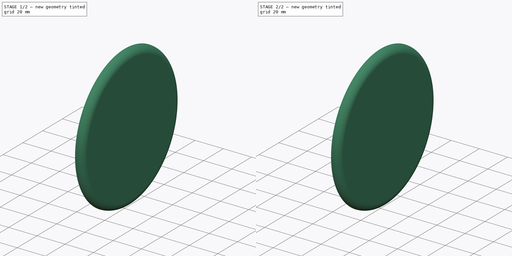
[diagram: build sequence overview — one tinted view per stage of 2, left to right]
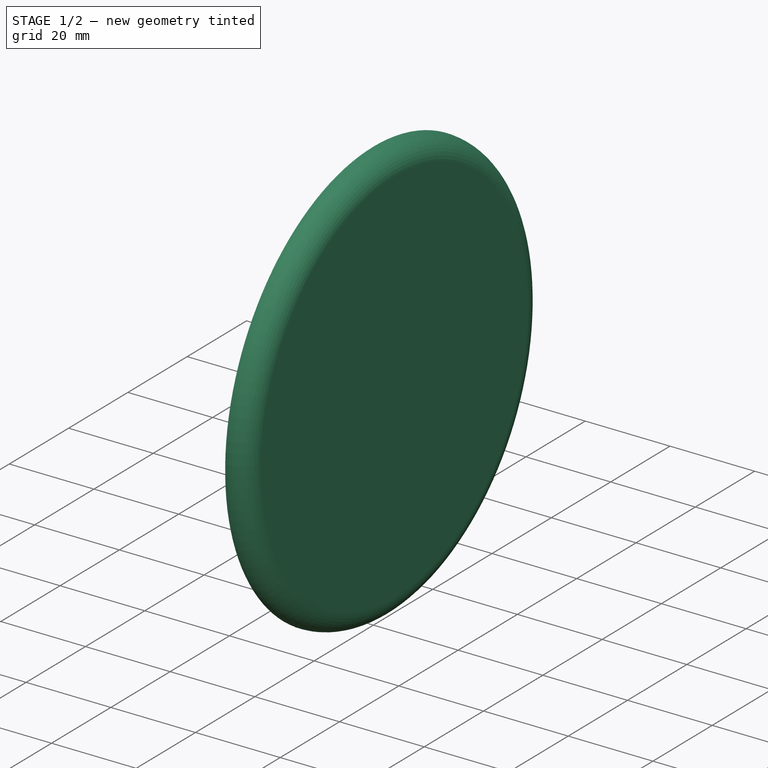
[diagram: stage 1 of 2 — iso view after this stage's code; geometry added in this stage tinted green]
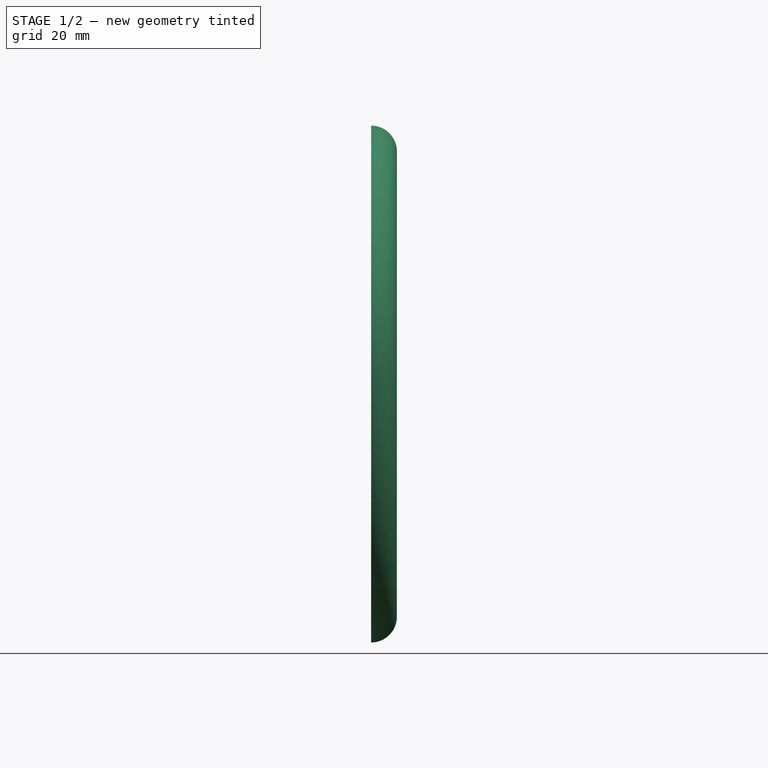
[diagram: stage 1 of 2 — front view after this stage's code; geometry added in this stage tinted green]
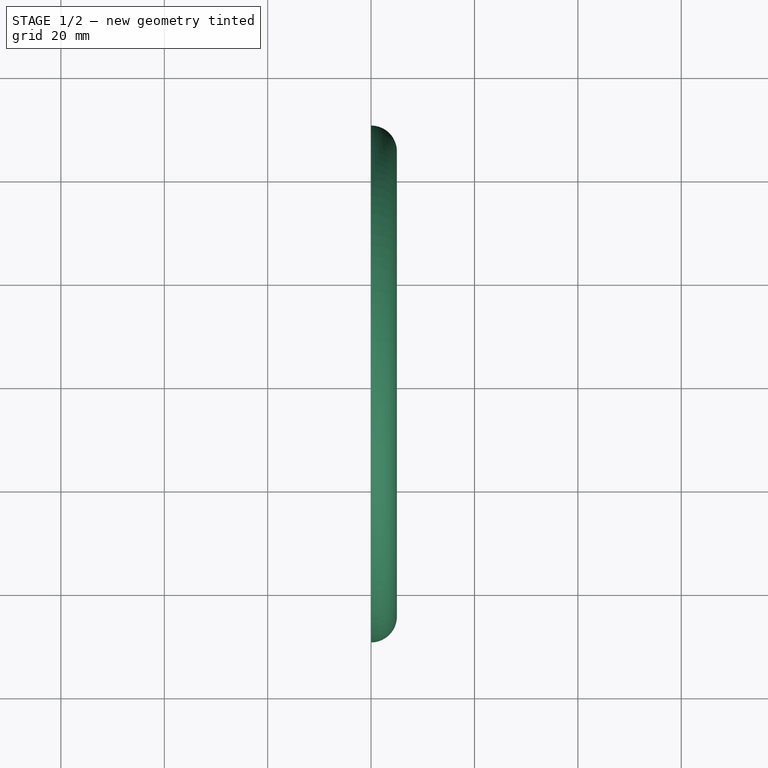
[diagram: stage 1 of 2 — top view after this stage's code; geometry added in this stage tinted green]
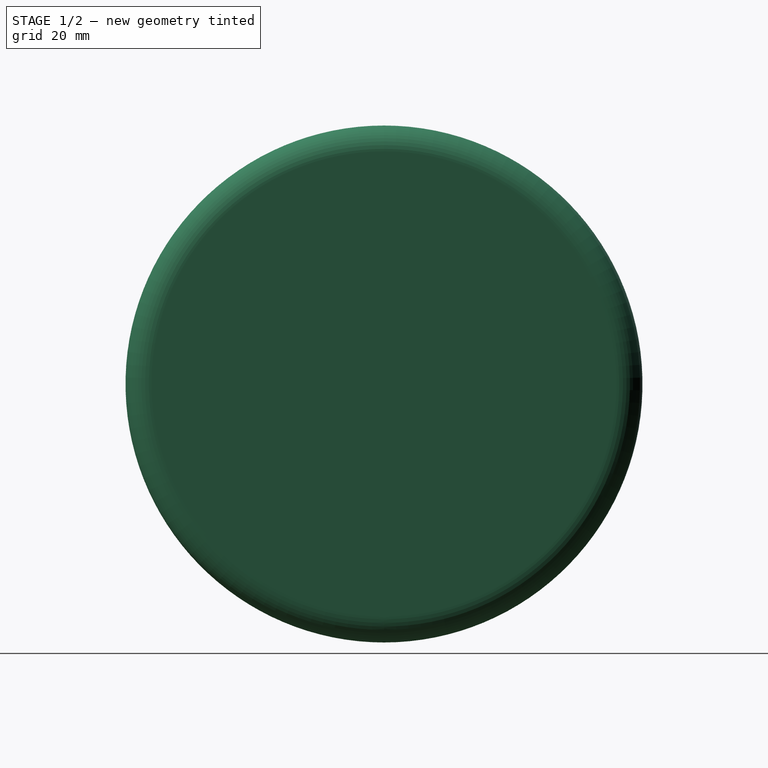
[diagram: stage 1 of 2 — right view after this stage's code; geometry added in this stage tinted green]
FCSTD DOCUMENT  (FreeCAD 0.20R27422 (Git))
Label: FlangedFlatPlate
License: All rights reserved
LicenseURL: http://en.wikipedia.org/wiki/All_rights_reserved
objects: Sketcher::SketchObject×3, PartDesign::Revolution×3, PartDesign::Body×3, Spreadsheet::Sheet×1, Part::Cut×1
note: 13 computed .brp shape members not serialized (recipe doc carries the construction recipe); baked Part::Feature solids carry a one-line shape summary decoded from their .brp

FEATURE [PartDesign::Body] Body  label="Outer"
  Group = -> [Sketch,Revolution]
  Origin = -> Origin
  Tip = -> Revolution
FEATURE [Sketcher::SketchObject] Sketch001  label="InnerShellSketch"
  AttachmentOffset = pos=(0,0,0) rot=(0,0,1;3.14159rad)
  FullyConstrained = true
  MapMode = 5
  Placement = pos=(0,0,0) rot=(0,-0.707107,0.707107;3.14159rad)
  Support = -> [XZ_Plane001]
  expr: .Constraints.EndcapHeight = Spreadsheet.flange_radius - Spreadsheet.thickness
  expr: .Constraints.EndcapLength = Spreadsheet.radius - Spreadsheet.flange_radius
  sketch-geometry (5):
    g0: LineSegment StartX=0 StartY=0 StartZ=0 EndX=1e-16 EndY=45 EndZ=0
    g1: LineSegment StartX=1e-16 StartY=45 StartZ=0 EndX=1e-16 EndY=47 EndZ=0
    g2: LineSegment StartX=0 StartY=0 StartZ=0 EndX=-2 EndY=0 EndZ=0
    g3: LineSegment StartX=-2 StartY=0 StartZ=0 EndX=-2 EndY=45 EndZ=0
    g4: ArcOfCircle CenterX=1e-16 CenterY=45 CenterZ=0 NormalX=0 NormalY=0 NormalZ=1 AngleXU=0 Radius=2 StartAngle=1.5708 EndAngle=3.14159
  constraints (14):
    c: Coincident(g0,g-1)
    c: PointOnObject(g0,g-2)
    c: Vertical(g1)
    c: Horizontal(g2)
    c: Vertical(g3)
    c: DistanceY(g0,g0) = 45  'EndcapLength'
    c: DistanceX(g2,g2) = 2  'EndcapHeight'
    c: Coincident(g2,g0)
    c: Coincident(g3,g2)
    c: Coincident(g1,g0)
    c: Coincident(g4,g0)
    c: Coincident(g4,g1)
    c: Coincident(g4,g3)
    c: Equal(g3,g0)
FEATURE [PartDesign::Revolution] Revolution001
  Angle = 360
  Axis = (-1,0,1e-16)
  Base = (0,0,0)
  Placement = pos=(0,0,0) rot=(1,0,0;1.5708rad)
  Profile = -> Sketch001
  ReferenceAxis = -> Sketch001 [H_Axis]
FEATURE [Sketcher::SketchObject] Sketch002
  AttachmentOffset = pos=(0,0,0) rot=(0,0,1;3.14159rad)
  FullyConstrained = true
  MapMode = 5
  Placement = pos=(0,0,0) rot=(0,-0.707107,0.707107;3.14159rad)
  Support = -> [XZ_Plane002]
  expr: .Constraints.EndcapHeight = Spreadsheet.flange_radius
  expr: .Constraints.EndcapLength = Spreadsheet.radius - Spreadsheet.flange_radius
  expr: .Constraints.FlangeRadius = Spreadsheet.flange_radius
  sketch-geometry (5):
    g0: LineSegment StartX=0 StartY=0 StartZ=0 EndX=2.7e-15 EndY=45 EndZ=0
    g1: LineSegment StartX=2.7e-15 StartY=45 StartZ=0 EndX=2.7e-15 EndY=50 EndZ=0
    g2: LineSegment StartX=0 StartY=0 StartZ=0 EndX=-5 EndY=0 EndZ=0
    g3: LineSegment StartX=-5 StartY=0 StartZ=0 EndX=-5 EndY=45 EndZ=0
    g4: ArcOfCircle CenterX=2.7e-15 CenterY=45 CenterZ=0 NormalX=0 NormalY=0 NormalZ=1 AngleXU=0 Radius=5 StartAngle=1.5708 EndAngle=3.1416
  constraints (14):
    c: Coincident(g0,g-1)
    c: PointOnObject(g0,g-2)
    c: Horizontal(g2)
    c: Vertical(g3)
    c: Radius(g4) = 5  'FlangeRadius'
    c: Coincident(g4,g0)
    c: Coincident(g1,g0)
    c: Vertical(g1)
    c: Coincident(g3,g2)
    c: Coincident(g2,g0)
    c: DistanceY(g0,g0) = 45  'EndcapLength'
    c: Coincident(g4,g1)
    c: DistanceX(g2,g2) = 5  'EndcapHeight'
    c: Coincident(g4,g3)
FEATURE [PartDesign::Revolution] Revolution002
  Angle = 360
  Axis = (-1,0,1e-16)
  Base = (0,0,0)
  Placement = pos=(0,0,0) rot=(1,0,0;1.5708rad)
  Profile = -> Sketch002
  ReferenceAxis = -> Sketch002 [H_Axis]
FEATURE [PartDesign::Body] Body002  label="DisplacedModel"
  Group = -> [Sketch002,Revolution002]
  Origin = -> Origin002
  Tip = -> Revolution002
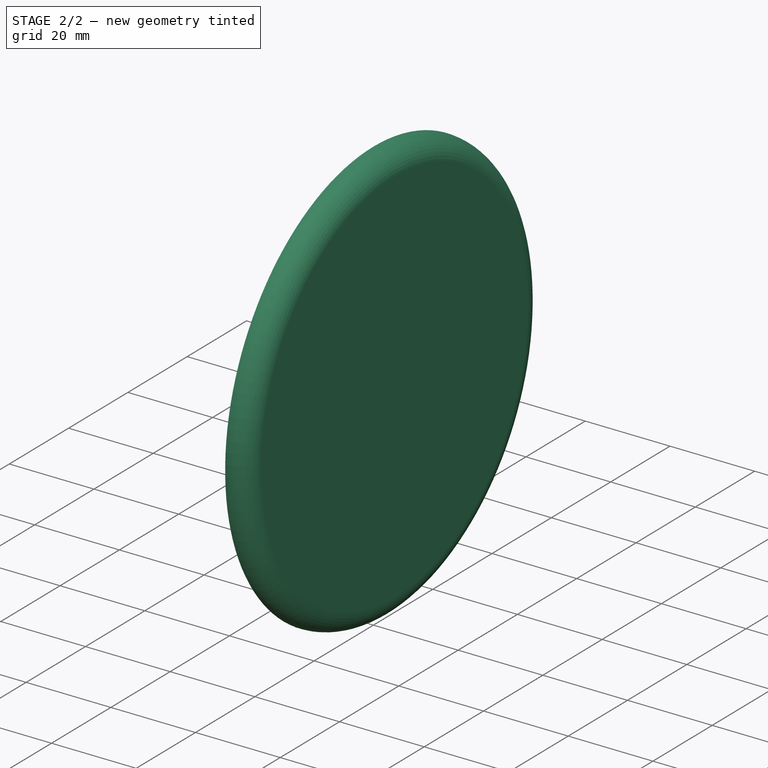
[diagram: stage 2 of 2 — iso view after this stage's code; geometry added in this stage tinted green]
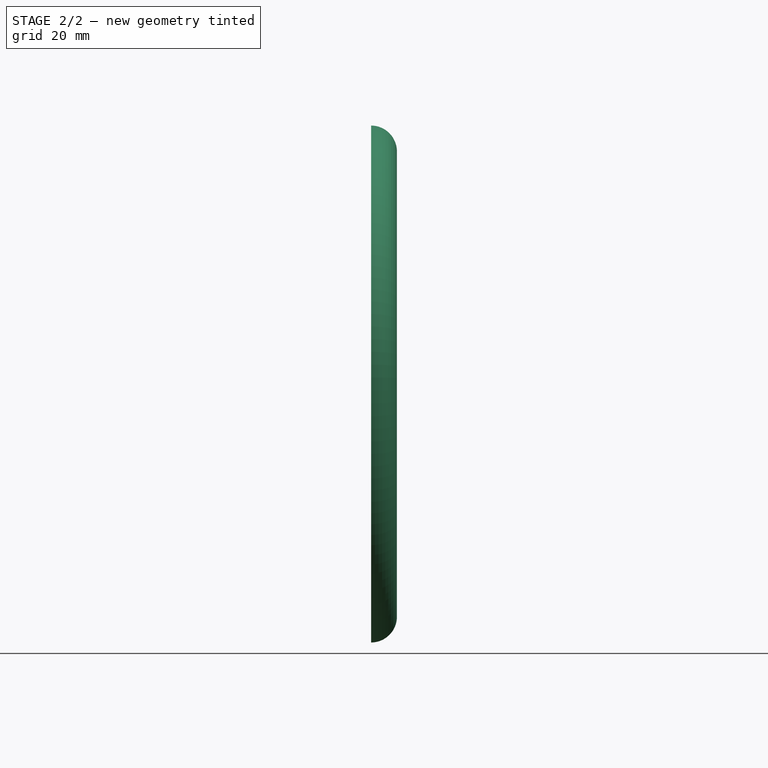
[diagram: stage 2 of 2 — front view after this stage's code; geometry added in this stage tinted green]
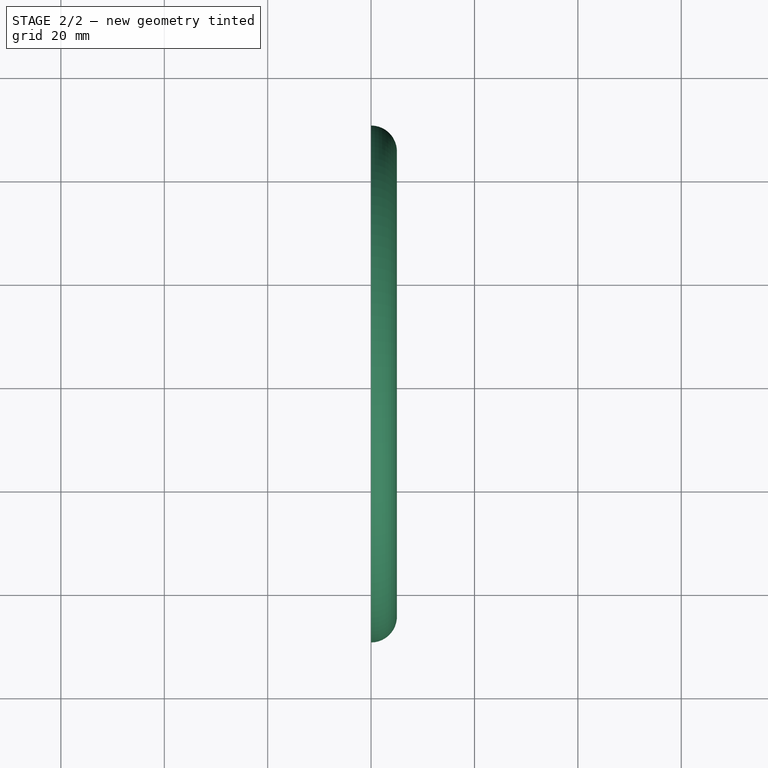
[diagram: stage 2 of 2 — top view after this stage's code; geometry added in this stage tinted green]
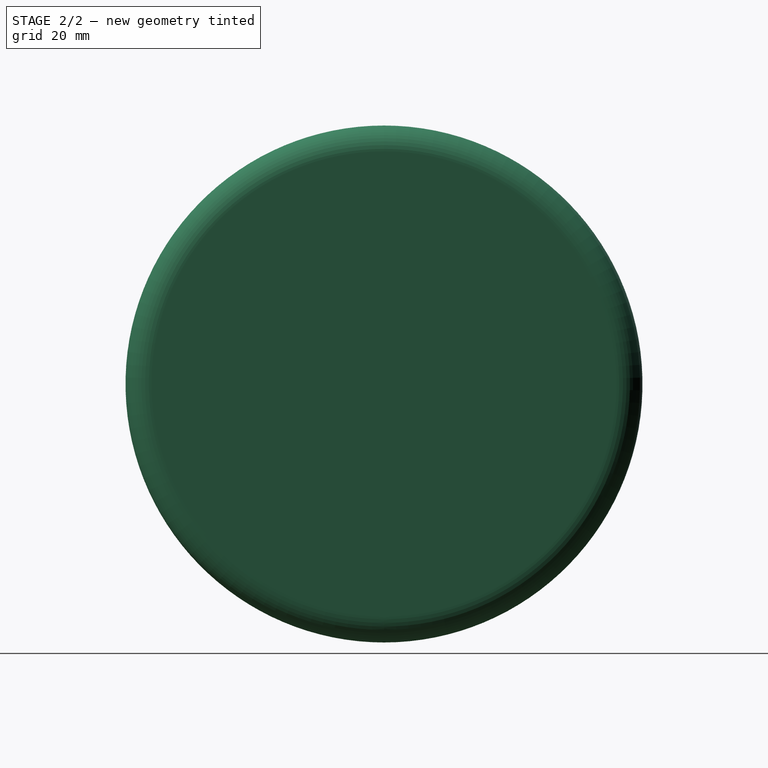
[diagram: stage 2 of 2 — right view after this stage's code; geometry added in this stage tinted green]
FEATURE [Spreadsheet::Sheet] Spreadsheet  label="Parameters"
  cells = A1=Radius; B1(radius)==0.05m; A2=Flange Radius; B2(flange_radius)==0.005m; A3=Thickness; B3(thickness)==0.003m
FEATURE [Sketcher::SketchObject] Sketch  label="OuterShellSketch"
  AttachmentOffset = pos=(0,0,0) rot=(0,0,1;3.14159rad)
  FullyConstrained = true
  MapMode = 5
  Placement = pos=(0,0,0) rot=(0,-0.707107,0.707107;3.14159rad)
  Support = -> [XZ_Plane]
  expr: .Constraints.EndcapHeight = Spreadsheet.flange_radius
  expr: .Constraints.EndcapLength = Spreadsheet.radius - Spreadsheet.flange_radius
  expr: .Constraints.FlangeRadius = Spreadsheet.flange_radius
  sketch-geometry (5):
    g0: LineSegment StartX=0 StartY=0 StartZ=0 EndX=2.1e-15 EndY=45 EndZ=0
    g1: LineSegment StartX=2.1e-15 StartY=45 StartZ=0 EndX=2.1e-15 EndY=50 EndZ=0
    g2: LineSegment StartX=0 StartY=0 StartZ=0 EndX=-5 EndY=0 EndZ=0
    g3: LineSegment StartX=-5 StartY=0 StartZ=0 EndX=-5 EndY=45 EndZ=0
    g4: ArcOfCircle CenterX=2.1e-15 CenterY=45 CenterZ=0 NormalX=0 NormalY=0 NormalZ=1 AngleXU=0 Radius=5 StartAngle=1.5708 EndAngle=3.14159
  constraints (14):
    c: Coincident(g0,g-1)
    c: PointOnObject(g0,g-2)
    c: Horizontal(g2)
    c: Vertical(g3)
    c: Radius(g4) = 5  'FlangeRadius'
    c: Coincident(g4,g0)
    c: Coincident(g1,g0)
    c: Vertical(g1)
    c: Coincident(g3,g2)
    c: Coincident(g2,g0)
    c: DistanceY(g0,g0) = 45  'EndcapLength'
    c: Coincident(g4,g1)
    c: DistanceX(g2,g2) = 5  'EndcapHeight'
    c: Coincident(g4,g3)
FEATURE [PartDesign::Revolution] Revolution
  Angle = 360
  Axis = (-1,0,1e-16)
  Base = (0,0,0)
  Placement = pos=(0,0,0) rot=(1,0,0;1.5708rad)
  Profile = -> Sketch
  ReferenceAxis = -> Sketch [H_Axis]
FEATURE [PartDesign::Body] Body001  label="Inner"
  Group = -> [Sketch001,Revolution001]
  Origin = -> Origin001
  Tip = -> Revolution001
FEATURE [Part::Cut] Cut  label="Model"
  Base = -> Body
  Tool = -> Body001
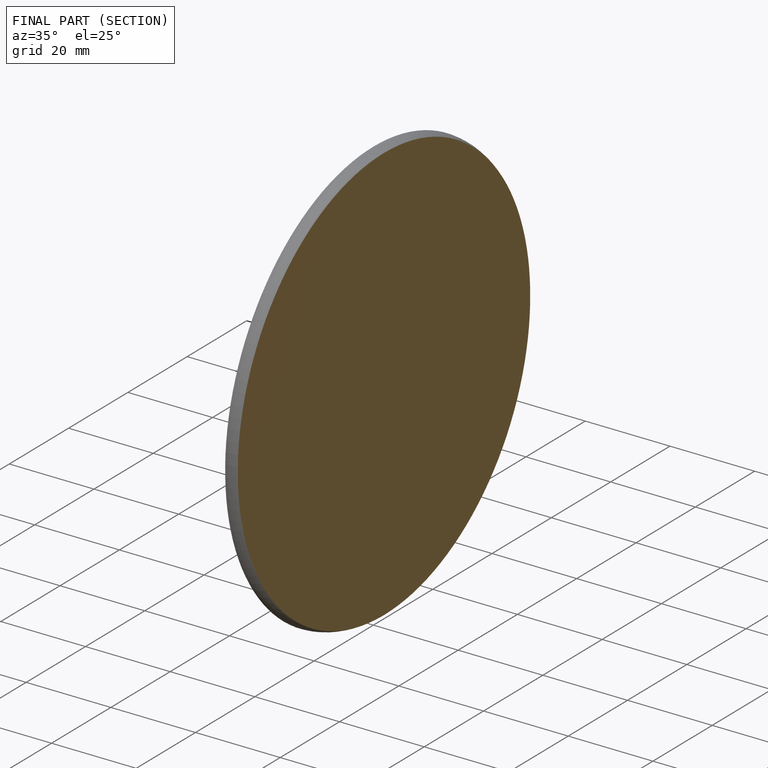
[diagram: finished part — half-section view (interior)]
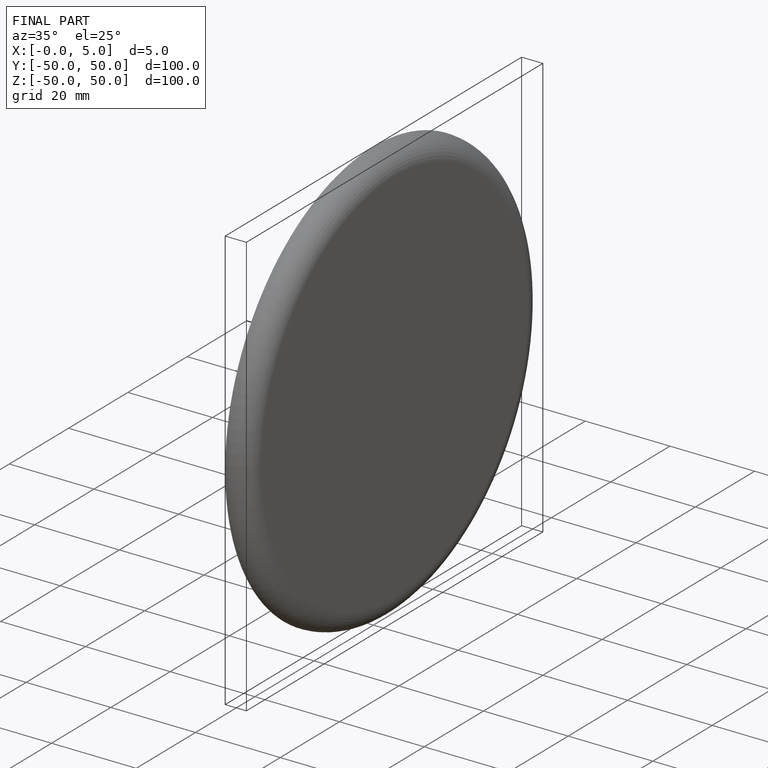
[diagram: finished part — iso view with bounding-box wireframe]
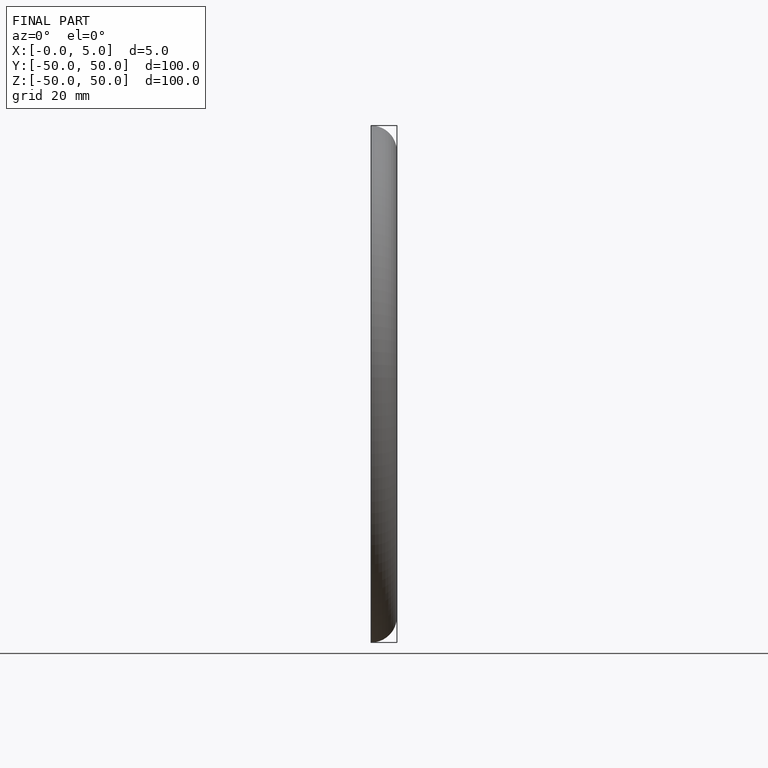
[diagram: finished part — front view with bounding-box wireframe]
